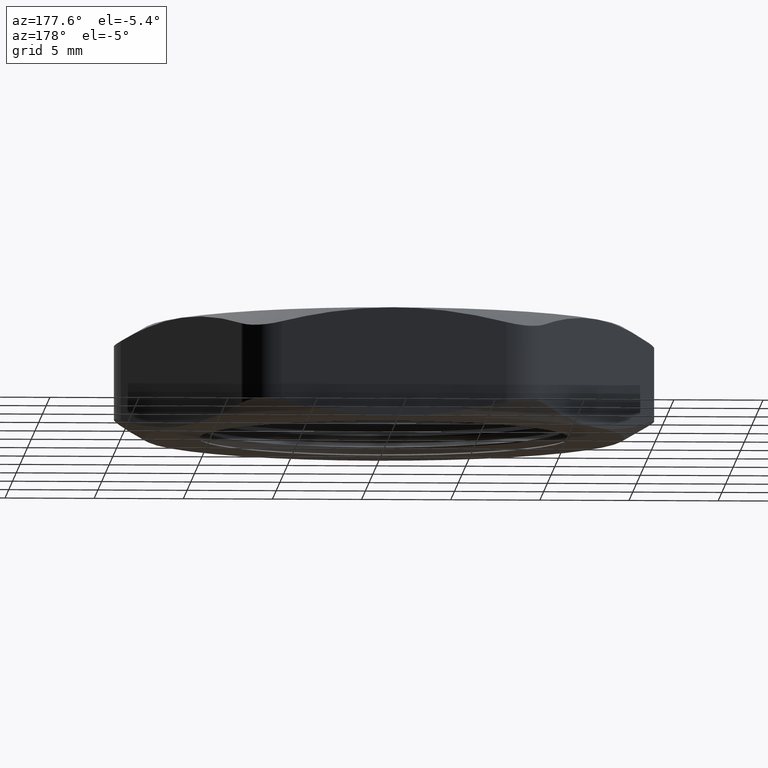
[diagram: clean part render]
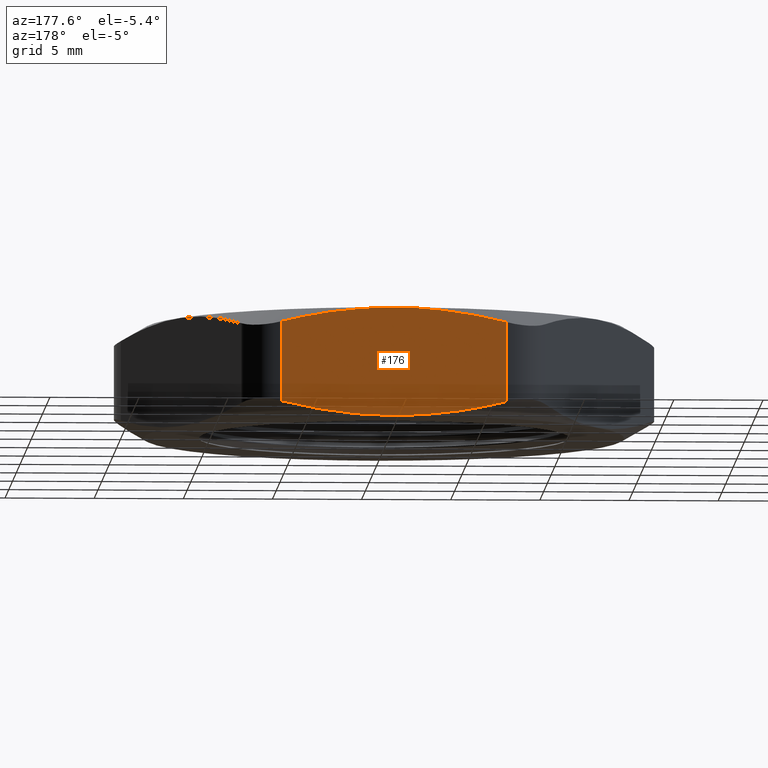
[diagram: same view with one face highlighted and labeled with its STEP entity id]
A machine part, auxiliary view. The second image highlights one B-rep face of the part: STEP entity #176.
In plain terms, the highlighted planar face has unit normal (0, -1, 0).
Its self-contained STEP definition (entity closure, byte-faithful):
#107 = VERTEX_POINT ( 'NONE', #555 ) ;
#163 = ORIENTED_EDGE ( 'NONE', *, *, #164, .T. ) ;
#164 = EDGE_CURVE ( 'NONE', #180, #165, #1430, .T. ) ;
#165 = VERTEX_POINT ( 'NONE', #1426 ) ;
#166 = ORIENTED_EDGE ( 'NONE', *, *, #350, .F. ) ;
#176 = ADVANCED_FACE ( 'NONE', ( #1489 ), #1488, .F. ) ;
#177 = EDGE_LOOP ( 'NONE', ( #178, #163, #166, #326, #329, #319 ) ) ;
#178 = ORIENTED_EDGE ( 'NONE', *, *, #179, .F. ) ;
#179 = EDGE_CURVE ( 'NONE', #180, #107, #1483, .T. ) ;
#180 = VERTEX_POINT ( 'NONE', #1481 ) ;
#318 = VERTEX_POINT ( 'NONE', #1726 ) ;
#319 = ORIENTED_EDGE ( 'NONE', *, *, #320, .F. ) ;
#320 = EDGE_CURVE ( 'NONE', #107, #318, #1724, .T. ) ;
#326 = ORIENTED_EDGE ( 'NONE', *, *, #327, .F. ) ;
#327 = EDGE_CURVE ( 'NONE', #328, #351, #1639, .T. ) ;
#328 = VERTEX_POINT ( 'NONE', #1638 ) ;
#329 = ORIENTED_EDGE ( 'NONE', *, *, #330, .T. ) ;
#330 = EDGE_CURVE ( 'NONE', #328, #318, #1631, .T. ) ;
#350 = EDGE_CURVE ( 'NONE', #351, #165, #1568, .T. ) ;
#351 = VERTEX_POINT ( 'NONE', #1567 ) ;
#555 = CARTESIAN_POINT ( 'NONE',  ( 0.0000000000000000000, 0.5299999999999999200, 0.0000000000000000000 ) ) ;
#1426 = CARTESIAN_POINT ( 'NONE',  ( -0.2482606157515391800, 0.5300000000000001400, 0.2080936187378568400 ) ) ;
#1427 = DIRECTION ( 'NONE',  ( 0.0000000000000000000, 0.0000000000000000000, 1.000000000000000000 ) ) ;
#1428 = VECTOR ( 'NONE', #1427, 39.37007874015748100 ) ;
#1429 = CARTESIAN_POINT ( 'NONE',  ( -0.2482606157515391300, 0.5300000000000001400, 0.2399999999999999900 ) ) ;
#1430 = LINE ( 'NONE', #1429, #1428 ) ;
#1475 = CARTESIAN_POINT ( 'NONE',  ( 0.0000000000000000000, 0.5299999999999999200, 0.0000000000000000000 ) ) ;
#1476 = CARTESIAN_POINT ( 'NONE',  ( -0.04187923722122018100, 0.5300000000000001400, 4.935467566678598300E-018 ) ) ;
#1477 = CARTESIAN_POINT ( 'NONE',  ( -0.08348449454732782800, 0.5300000000000001400, 0.002899590362529387700 ) ) ;
#1478 = CARTESIAN_POINT ( 'NONE',  ( -0.1662082438519784900, 0.5300000000000001400, 0.01385031737179092900 ) ) ;
#1479 = CARTESIAN_POINT ( 'NONE',  ( -0.2073285774621217200, 0.5299999999999999200, 0.02188196362037741700 ) ) ;
#1480 = CARTESIAN_POINT ( 'NONE',  ( -0.2482606157515391300, 0.5300000000000001400, 0.03190638126214316600 ) ) ;
#1481 = CARTESIAN_POINT ( 'NONE',  ( -0.2482606157515391300, 0.5300000000000001400, 0.03190638126214316600 ) ) ;
#1483 = B_SPLINE_CURVE_WITH_KNOTS ( 'NONE', 3,
 ( #1480, #1479, #1478, #1477, #1476, #1475 ),
 .UNSPECIFIED., .F., .F.,
 ( 4, 2, 4 ),
 ( 0.01613690399679807600, 0.01931818803873045600, 0.02249947208066283400 ),
 .UNSPECIFIED. ) ;
#1484 = DIRECTION ( 'NONE',  ( 0.0000000000000000000, 0.0000000000000000000, -1.000000000000000000 ) ) ;
#1485 = DIRECTION ( 'NONE',  ( 0.0000000000000000000, -1.000000000000000000, 0.0000000000000000000 ) ) ;
#1486 = CARTESIAN_POINT ( 'NONE',  ( 0.3059956426705019400, 0.5300000000000001400, 0.2399999999999999900 ) ) ;
#1487 = AXIS2_PLACEMENT_3D ( 'NONE', #1486, #1485, #1484 ) ;
#1488 = PLANE ( 'NONE',  #1487 ) ;
#1489 = FACE_OUTER_BOUND ( 'NONE', #177, .T. ) ;
#1560 = CARTESIAN_POINT ( 'NONE',  ( -0.2482606157515391800, 0.5300000000000001400, 0.2080936187378568400 ) ) ;
#1561 = CARTESIAN_POINT ( 'NONE',  ( -0.2073285774621216300, 0.5300000000000001400, 0.2181180363796226300 ) ) ;
#1562 = CARTESIAN_POINT ( 'NONE',  ( -0.1662082438519784400, 0.5300000000000001400, 0.2261496826282090900 ) ) ;
#1563 = CARTESIAN_POINT ( 'NONE',  ( -0.08348449454732791200, 0.5300000000000001400, 0.2371004096374706700 ) ) ;
#1564 = CARTESIAN_POINT ( 'NONE',  ( -0.04187923722122022200, 0.5299999999999999200, 0.2399999999999999600 ) ) ;
#1565 = CARTESIAN_POINT ( 'NONE',  ( 0.0000000000000000000, 0.5300000000000001400, 0.2399999999999999900 ) ) ;
#1567 = CARTESIAN_POINT ( 'NONE',  ( 0.0000000000000000000, 0.5300000000000001400, 0.2399999999999999900 ) ) ;
#1568 = B_SPLINE_CURVE_WITH_KNOTS ( 'NONE', 3,
 ( #1565, #1564, #1563, #1562, #1561, #1560 ),
 .UNSPECIFIED., .F., .F.,
 ( 4, 2, 4 ),
 ( 0.04638433164487820000, 0.04956448239753424200, 0.05274463315019028300 ),
 .UNSPECIFIED. ) ;
#1628 = DIRECTION ( 'NONE',  ( 0.0000000000000000000, 0.0000000000000000000, -1.000000000000000000 ) ) ;
#1629 = VECTOR ( 'NONE', #1628, 39.37007874015748100 ) ;
#1630 = CARTESIAN_POINT ( 'NONE',  ( 0.2482606157515393500, 0.5300000000000001400, 0.2399999999999999900 ) ) ;
#1631 = LINE ( 'NONE', #1630, #1629 ) ;
#1632 = CARTESIAN_POINT ( 'NONE',  ( 0.0000000000000000000, 0.5300000000000001400, 0.2399999999999999900 ) ) ;
#1633 = CARTESIAN_POINT ( 'NONE',  ( 0.04181844682057911400, 0.5300000000000001400, 0.2399999999999999600 ) ) ;
#1634 = CARTESIAN_POINT ( 'NONE',  ( 0.08415995574331082400, 0.5299999999999999200, 0.2370430615141001500 ) ) ;
#1635 = CARTESIAN_POINT ( 'NONE',  ( 0.1670878377903907400, 0.5300000000000002500, 0.2260005700019994100 ) ) ;
#1636 = CARTESIAN_POINT ( 'NONE',  ( 0.2079115416018123600, 0.5300000000000001400, 0.2179752661621910100 ) ) ;
#1637 = CARTESIAN_POINT ( 'NONE',  ( 0.2482606157514898900, 0.5300000000000001400, 0.2080936187378688900 ) ) ;
#1638 = CARTESIAN_POINT ( 'NONE',  ( 0.2482606157514898900, 0.5300000000000001400, 0.2080936187378688900 ) ) ;
#1639 = B_SPLINE_CURVE_WITH_KNOTS ( 'NONE', 3,
 ( #1637, #1636, #1635, #1634, #1633, #1632 ),
 .UNSPECIFIED., .F., .F.,
 ( 4, 2, 4 ),
 ( 0.04003326252540594100, 0.04320879708514206700, 0.04638433164487820000 ),
 .UNSPECIFIED. ) ;
#1715 = CARTESIAN_POINT ( 'NONE',  ( 0.2482606157514898900, 0.5300000000000001400, 0.03190638126213110600 ) ) ;
#1716 = CARTESIAN_POINT ( 'NONE',  ( 0.2079115416018123600, 0.5300000000000001400, 0.02202473383780897300 ) ) ;
#1717 = CARTESIAN_POINT ( 'NONE',  ( 0.1670878377903906000, 0.5300000000000001400, 0.01399942999800066200 ) ) ;
#1718 = CARTESIAN_POINT ( 'NONE',  ( 0.08415995574331071300, 0.5300000000000001400, 0.002956938485899810900 ) ) ;
#1719 = CARTESIAN_POINT ( 'NONE',  ( 0.04181844682057915500, 0.5299999999999999200, -4.201816982442590600E-018 ) ) ;
#1720 = CARTESIAN_POINT ( 'NONE',  ( 0.0000000000000000000, 0.5299999999999999200, 0.0000000000000000000 ) ) ;
#1724 = B_SPLINE_CURVE_WITH_KNOTS ( 'NONE', 3,
 ( #1720, #1719, #1718, #1717, #1716, #1715 ),
 .UNSPECIFIED., .F., .F.,
 ( 4, 2, 4 ),
 ( 0.02249947208066283400, 0.02567613828463317600, 0.02885280448860351800 ),
 .UNSPECIFIED. ) ;
#1726 = CARTESIAN_POINT ( 'NONE',  ( 0.2482606157514898900, 0.5300000000000001400, 0.03190638126213110600 ) ) ;